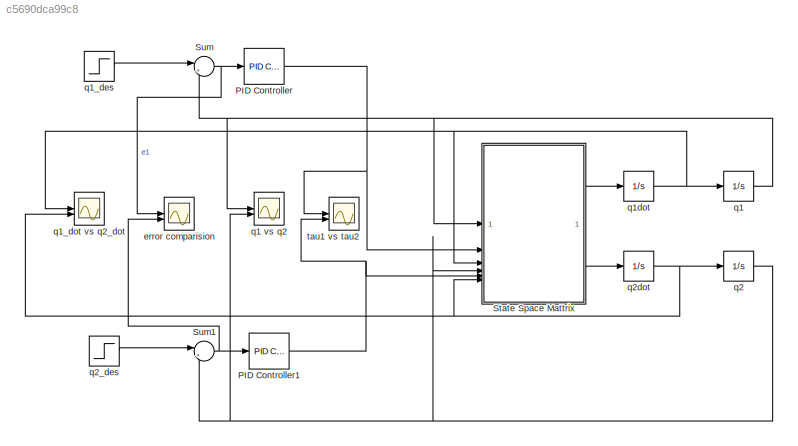
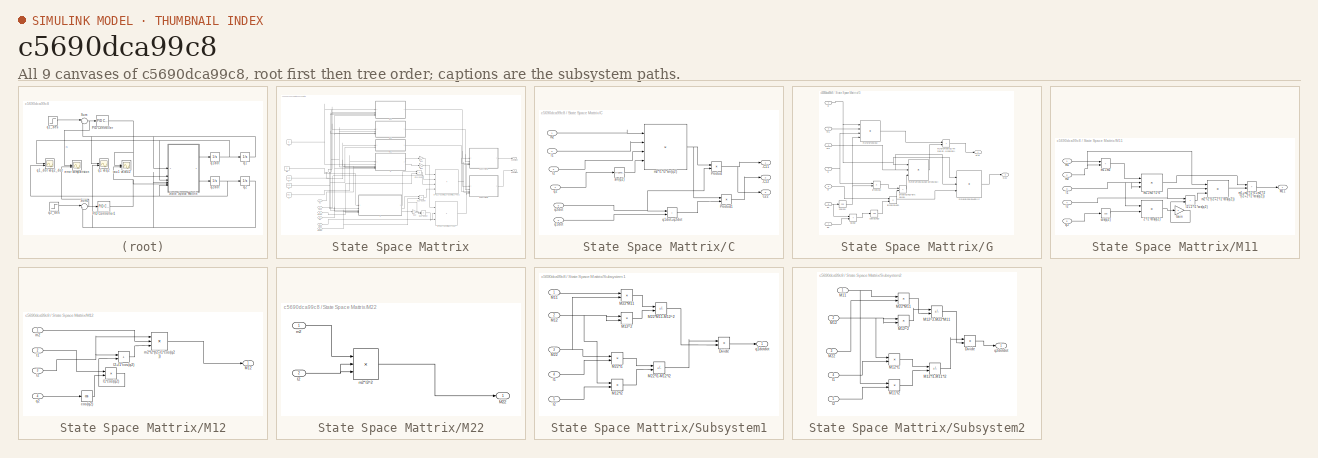
[diagram: thumbnail index - all 9 canvases of the model, root first then tree order]
MODEL slx_c5690dca99c8
KIND model
CONFIG AbsTol = auto
CONFIG EnableMultiTasking = off
CONFIG FixedStep = auto
CONFIG MaxStep = auto
CONFIG MinStep = auto
CONFIG RelTol = 1e-3
CONFIG SampleTimeConstraint = Unconstrained
CONFIG SolverName = VariableStepAuto
CONFIG StartTime = 0.0
CONFIG StopTime = 50
BLOCK [Reference] PID Controller  REF=slpidlib/PID Controller
  LibrarySourceBlock = simulink/Continuous/PID Controller
  SourceBlock = slpidlib/PID Controller
  SourceType = PID 1dof
BLOCK [Reference] PID Controller1  REF=slpidlib/PID Controller
  LibrarySourceBlock = simulink/Continuous/PID Controller
  SourceBlock = slpidlib/PID Controller
  SourceType = PID 1dof
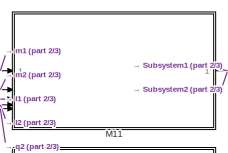
[diagram: State Space Mattrix - part 1/3, top center region]
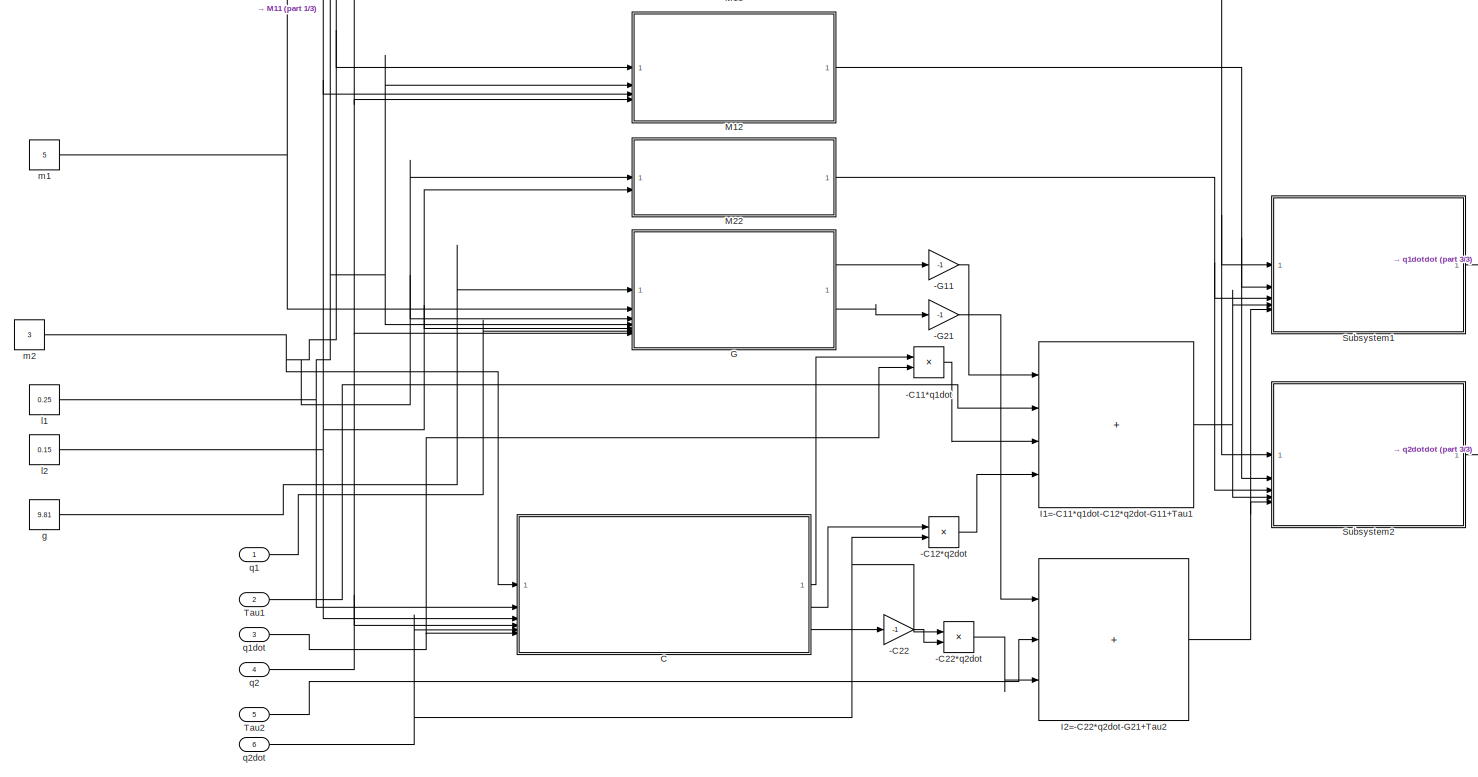
[diagram: State Space Mattrix - part 2/3, most of the canvas]
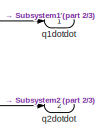
[diagram: State Space Mattrix - part 3/3, middle right region]
BLOCK [SubSystem] State Space Mattrix
BLOCK [Product] State Space Mattrix/-C11*q1dot
BLOCK [Product] State Space Mattrix/-C12*q2dot
BLOCK [Gain] State Space Mattrix/-C22
  Gain = -1
BLOCK [Product] State Space Mattrix/-C22*q2dot
BLOCK [Gain] State Space Mattrix/-G11
  Gain = -1
BLOCK [Gain] State Space Mattrix/-G21
  Gain = -1
BLOCK [SubSystem] State Space Mattrix/C
BLOCK [Outport] State Space Mattrix/C/-C11
BLOCK [Outport] State Space Mattrix/C/-C12
  Port = 2
BLOCK [Outport] State Space Mattrix/C/C22
  Port = 3
BLOCK [Inport] State Space Mattrix/C/I2
  Port = 3
BLOCK [Product] State Space Mattrix/C/Product
BLOCK [Product] State Space Mattrix/C/Product1
BLOCK [Inport] State Space Mattrix/C/l1
  Port = 2
BLOCK [Inport] State Space Mattrix/C/m2
BLOCK [Product] State Space Mattrix/C/m2*l1*l2*sin(q2)
  Inputs = 4
BLOCK [Inport] State Space Mattrix/C/q1dot
  Port = 6
BLOCK [Sum] State Space Mattrix/C/q1dot+q2dot
  IconShape = rectangular
BLOCK [Inport] State Space Mattrix/C/q2
  Port = 4
BLOCK [Inport] State Space Mattrix/C/q2dot
  Port = 5
BLOCK [Trigonometry] State Space Mattrix/C/sin(q2)
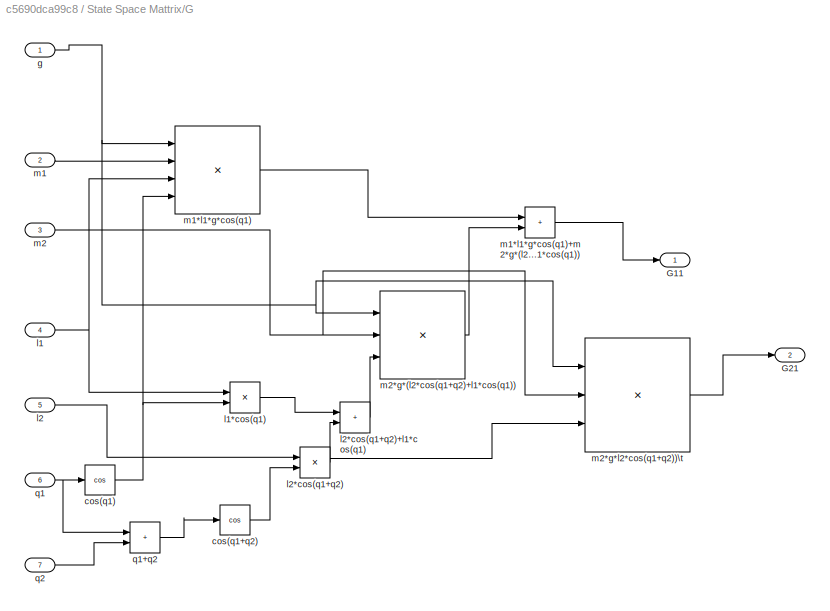
BLOCK [SubSystem] State Space Mattrix/G
BLOCK [Outport] State Space Mattrix/G/G11
BLOCK [Outport] State Space Mattrix/G/G21
  Port = 2
BLOCK [Trigonometry] State Space Mattrix/G/cos(q1)
  Operator = cos
BLOCK [Trigonometry] State Space Mattrix/G/cos(q1+q2)
  Operator = cos
BLOCK [Inport] State Space Mattrix/G/g
BLOCK [Inport] State Space Mattrix/G/l1
  Port = 4
BLOCK [Product] State Space Mattrix/G/l1*cos(q1)
BLOCK [Inport] State Space Mattrix/G/l2
  Port = 5
BLOCK [Product] State Space Mattrix/G/l2*cos(q1+q2)
BLOCK [Sum] State Space Mattrix/G/l2*cos(q1+q2)+l1*cos(q1)
  IconShape = rectangular
BLOCK [Inport] State Space Mattrix/G/m1
  Port = 2
BLOCK [Product] State Space Mattrix/G/m1*l1*g*cos(q1)
  Inputs = 4
BLOCK [Sum] State Space Mattrix/G/m1*l1*g*cos(q1)+m2*g*(l2*cos(q1+q2)+l1*cos(q1))
  IconShape = rectangular
BLOCK [Inport] State Space Mattrix/G/m2
  Port = 3
BLOCK [Product] State Space Mattrix/G/m2*g*(l2*cos(q1+q2)+l1*cos(q1))
  Inputs = 3
BLOCK [Product] State Space Mattrix/G/m2*g*l2*cos(q1+q2))\t
  Inputs = 3
BLOCK [Inport] State Space Mattrix/G/q1
  Port = 6
BLOCK [Sum] State Space Mattrix/G/q1+q2
  IconShape = rectangular
BLOCK [Inport] State Space Mattrix/G/q2
  Port = 7
BLOCK [Sum] State Space Mattrix/I1=-C11*q1dot-C12*q2dot-G11+Tau1
  IconShape = rectangular
  Inputs = ++++
BLOCK [Sum] State Space Mattrix/I2=-C22*q2dot-G21+Tau2
  IconShape = rectangular
  Inputs = +++
BLOCK [SubSystem] State Space Mattrix/M11
BLOCK [Product] State Space Mattrix/M11/2*l1*cos(q2)
BLOCK [Gain] State Space Mattrix/M11/Gain
  Gain = 2
BLOCK [Outport] State Space Mattrix/M11/M11
BLOCK [Trigonometry] State Space Mattrix/M11/cos(q2)
  Operator = cos
BLOCK [Inport] State Space Mattrix/M11/l1
  Port = 3
BLOCK [Inport] State Space Mattrix/M11/l2
  Port = 4
BLOCK [Sum] State Space Mattrix/M11/l2+2*l1*cos(q2)
  IconShape = rectangular
BLOCK [Inport] State Space Mattrix/M11/m1
BLOCK [Sum] State Space Mattrix/M11/m1+m2
  IconShape = rectangular
BLOCK [Product] State Space Mattrix/M11/m1+m2*l1^2
  Inputs = 3
BLOCK [Sum] State Space Mattrix/M11/m1+m2*l1^2+m2*l2*(l2+2*l1*cos(q2))
  IconShape = rectangular
BLOCK [Inport] State Space Mattrix/M11/m2
  Port = 2
BLOCK [Product] State Space Mattrix/M11/m2*l2*(l2+2*l1*cos(q2))
  Inputs = 3
BLOCK [Inport] State Space Mattrix/M11/q2
  Port = 5
BLOCK [SubSystem] State Space Mattrix/M12
BLOCK [Outport] State Space Mattrix/M12/M12
BLOCK [Trigonometry] State Space Mattrix/M12/cos(q2)
  Operator = cos
BLOCK [Inport] State Space Mattrix/M12/l1
  Port = 2
BLOCK [Product] State Space Mattrix/M12/l1*cos(q2)
BLOCK [Inport] State Space Mattrix/M12/l2
  Port = 3
BLOCK [Sum] State Space Mattrix/M12/l2+l1*cos(q2)
  IconShape = rectangular
BLOCK [Inport] State Space Mattrix/M12/m2
BLOCK [Product] State Space Mattrix/M12/m2*l2*(l2+l1*cos(q2))
  Inputs = 3
BLOCK [Inport] State Space Mattrix/M12/q2
  Port = 4
BLOCK [SubSystem] State Space Mattrix/M22
BLOCK [Outport] State Space Mattrix/M22/M22
BLOCK [Inport] State Space Mattrix/M22/l2
  Port = 2
BLOCK [Inport] State Space Mattrix/M22/m2
BLOCK [Product] State Space Mattrix/M22/m2*l2^2
  Inputs = 3
BLOCK [SubSystem] State Space Mattrix/Subsystem1
BLOCK [Product] State Space Mattrix/Subsystem1/Divide
  Inputs = */
BLOCK [Inport] State Space Mattrix/Subsystem1/I1
  Port = 4
BLOCK [Inport] State Space Mattrix/Subsystem1/I2
  Port = 5
BLOCK [Inport] State Space Mattrix/Subsystem1/M11
BLOCK [Inport] State Space Mattrix/Subsystem1/M12
  Port = 2
BLOCK [Product] State Space Mattrix/Subsystem1/M12*I2
BLOCK [Product] State Space Mattrix/Subsystem1/M12^2
BLOCK [Inport] State Space Mattrix/Subsystem1/M22
  Port = 3
BLOCK [Product] State Space Mattrix/Subsystem1/M22*I1
BLOCK [Sum] State Space Mattrix/Subsystem1/M22*I1-M12*I2
  IconShape = rectangular
  Inputs = +-
BLOCK [Product] State Space Mattrix/Subsystem1/M22*M11
BLOCK [Sum] State Space Mattrix/Subsystem1/M22*M11-M12^2
  IconShape = rectangular
  Inputs = +-
BLOCK [Outport] State Space Mattrix/Subsystem1/q1dotdot 
BLOCK [SubSystem] State Space Mattrix/Subsystem2
BLOCK [Product] State Space Mattrix/Subsystem2/Divide
  Inputs = */
BLOCK [Inport] State Space Mattrix/Subsystem2/I1
  Port = 4
BLOCK [Inport] State Space Mattrix/Subsystem2/I2
  Port = 5
BLOCK [Inport] State Space Mattrix/Subsystem2/M11
BLOCK [Product] State Space Mattrix/Subsystem2/M11*I2
BLOCK [Inport] State Space Mattrix/Subsystem2/M12
  Port = 2
BLOCK [Product] State Space Mattrix/Subsystem2/M12*I1
BLOCK [Sum] State Space Mattrix/Subsystem2/M12*I1-M11*I2
  IconShape = rectangular
  Inputs = +-
BLOCK [Product] State Space Mattrix/Subsystem2/M12^2
BLOCK [Sum] State Space Mattrix/Subsystem2/M12^2-M22*M11
  IconShape = rectangular
  Inputs = +-
BLOCK [Inport] State Space Mattrix/Subsystem2/M22
  Port = 3
BLOCK [Product] State Space Mattrix/Subsystem2/M22*M11
BLOCK [Outport] State Space Mattrix/Subsystem2/q2dotdot 
BLOCK [Inport] State Space Mattrix/Tau1
  Port = 2
BLOCK [Inport] State Space Mattrix/Tau2
  Port = 5
BLOCK [Constant] State Space Mattrix/g
  Value = 9.81
BLOCK [Constant] State Space Mattrix/l1
  Value = 0.25
BLOCK [Constant] State Space Mattrix/l2
  Value = 0.15
BLOCK [Constant] State Space Mattrix/m1
  Value = 5
BLOCK [Constant] State Space Mattrix/m2
  Value = 3
BLOCK [Inport] State Space Mattrix/q1
BLOCK [Inport] State Space Mattrix/q1dot
  Port = 3
BLOCK [Outport] State Space Mattrix/q1dotdot
BLOCK [Inport] State Space Mattrix/q2
  Port = 4
BLOCK [Inport] State Space Mattrix/q2dot
  Port = 6
BLOCK [Outport] State Space Mattrix/q2dotdot
  Port = 2
BLOCK [Sum] Sum
  Inputs = |+-
BLOCK [Sum] Sum1
  Inputs = |+-
BLOCK [Scope] error comparision
  ActiveDisplayYMaximum = 1
  ActiveDisplayYMinimum = -1
  DataLoggingVariableName = ScopeData1
  Floating = off
  GraphicalSettings = {"Style":{"BackgroundColor":[0.12941176470588237,0.12941176470588237,0.12941176470588237],"AxesColor":[0.07058823529411765,0.07058823529411765,0.07058823529411765],"LabelsColor":[0.8509803921568627,0.8509803921568627,0.8509803921568627],"PreserveColors":false,"Visible":[true,true],"LineStyle":["-","-"],"LineWidth":[1.5,1.5],"BarWidth":[0.9,0.9],"LineColor":["auto","auto"],"LineFaceAlpha":[1,1],"Li...<+2103ch>
  MultipleDisplayCache = [{"MaxYLimMag":1,"MaxYLimReal":1,"MinYLimMag":0,"MinYLimReal":-1,"PlotAsMagnitudePhase":false,"ShowGrid":true,"ShowLegend":true,"Title":"%<SignalLabel>","YLabel":""}]
  NumInputPorts = 2
  ScopeFrameLocation = window
  ShowLegend = on
  WasSavedAsWebScope = on
  WindowPosition = [1.000000,49.000000,1280.000000,729.000000,]
BLOCK [Integrator] q1
  InitialCondition = 0.1
BLOCK [Scope] q1 vs q2
  ActiveDisplayYMaximum = 0.20860466599804511
  ActiveDisplayYMinimum = -0.27365843091544217
  Floating = off
  GraphicalSettings = {"Style":{"BackgroundColor":[0.12941176470588237,0.12941176470588237,0.12941176470588237],"AxesColor":[0.07058823529411765,0.07058823529411765,0.07058823529411765],"LabelsColor":[0.8509803921568627,0.8509803921568627,0.8509803921568627],"PreserveColors":false,"Visible":[true,true],"LineStyle":["-","-"],"LineWidth":[1.5,1.5],"BarWidth":[0.9,0.9],"LineColor":["auto","auto"],"LineFaceAlpha":[1,1],"Li...<+2096ch>
  MultipleDisplayCache = [{"MaxYLimMag":0.16185012331841014,"MaxYLimReal":0.20860466599804511,"MinYLimMag":0,"MinYLimReal":-0.27365843091544217,"PlotAsMagnitudePhase":false,"ShowGrid":true,"ShowLegend":true,"Title":"%<SignalLabel>","YLabel":""}]
  NumInputPorts = 2
  ScopeFrameLocation = window
  ShowLegend = on
  WasSavedAsWebScope = on
  WindowPosition = [1.000000,49.000000,1280.000000,729.000000,]
BLOCK [Step] q1_des
  After = 0
  SampleTime = 0
BLOCK [Scope] q1_dot vs q2_dot
  ActiveDisplayYMaximum = 9.3160134029449342
  ActiveDisplayYMinimum = -16.221672111581775
  DataLoggingVariableName = ScopeData2
  Floating = off
  GraphicalSettings = {"Style":{"BackgroundColor":[0.12941176470588237,0.12941176470588237,0.12941176470588237],"AxesColor":[0.07058823529411765,0.07058823529411765,0.07058823529411765],"LabelsColor":[0.8509803921568627,0.8509803921568627,0.8509803921568627],"PreserveColors":false,"Visible":[true,true],"LineStyle":["-","-"],"LineWidth":[1.5,1.5],"BarWidth":[0.9,0.9],"LineColor":["auto","auto"],"LineFaceAlpha":[1,1],"Li...<+2100ch>
  MultipleDisplayCache = [{"MaxYLimMag":79.8910428056106,"MaxYLimReal":9.3160134029449342,"MinYLimMag":0,"MinYLimReal":-16.221672111581775,"PlotAsMagnitudePhase":false,"ShowGrid":true,"ShowLegend":false,"Title":"%<SignalLabel>","YLabel":""}]
  NumInputPorts = 2
  ScopeFrameLocation = window
  WasSavedAsWebScope = on
  WindowPosition = [0.000000,36.000000,1280.000000,729.000000,]
BLOCK [Integrator] q1dot
BLOCK [Integrator] q2
  InitialCondition = 0.1
BLOCK [Step] q2_des
  After = 0
  SampleTime = 0
BLOCK [Integrator] q2dot
BLOCK [Scope] tau1 vs tau2
  ActiveDisplayYMaximum = 40.414840154467996
  ActiveDisplayYMinimum = -30.7924543124781
  DataLoggingVariableName = ScopeData3
  Floating = off
  GraphicalSettings = {"Style":{"BackgroundColor":[0.12941176470588237,0.12941176470588237,0.12941176470588237],"AxesColor":[0.07058823529411765,0.07058823529411765,0.07058823529411765],"LabelsColor":[0.8509803921568627,0.8509803921568627,0.8509803921568627],"PreserveColors":false,"Visible":[true,true],"LineStyle":["-","-"],"LineWidth":[1.5,1.5],"BarWidth":[0.9,0.9],"LineColor":["auto","auto"],"LineFaceAlpha":[1,1],"Li...<+2138ch>
  MultipleDisplayCache = [{"MaxYLimMag":895.31701733334739,"MaxYLimReal":40.414840154467996,"MinYLimMag":0,"MinYLimReal":-30.7924543124781,"PlotAsMagnitudePhase":false,"ShowGrid":true,"ShowLegend":false,"Title":"%<SignalLabel>","YLabel":""}]
  NumInputPorts = 2
  ScopeFrameLocation = window
  WasSavedAsWebScope = on
  WindowPosition = [0.000000,36.000000,1280.000000,729.000000,]
NET PID Controller1:1 -> State Space Mattrix:5, tau1 vs tau2:2
NET PID Controller:1 -> State Space Mattrix:2, tau1 vs tau2:1
LINE State Space Mattrix/-C11*q1dot:1 -> State Space Mattrix/I1=-C11*q1dot-C12*q2dot-G11+Tau1:3
LINE State Space Mattrix/-C12*q2dot:1 -> State Space Mattrix/I1=-C11*q1dot-C12*q2dot-G11+Tau1:4
LINE State Space Mattrix/-C22*q2dot:1 -> State Space Mattrix/I2=-C22*q2dot-G21+Tau2:3
LINE State Space Mattrix/-C22:1 -> State Space Mattrix/-C22*q2dot:2
LINE State Space Mattrix/-G11:1 -> State Space Mattrix/I1=-C11*q1dot-C12*q2dot-G11+Tau1:1
LINE State Space Mattrix/-G21:1 -> State Space Mattrix/I2=-C22*q2dot-G21+Tau2:1
LINE State Space Mattrix/C/I2:1 -> State Space Mattrix/C/m2*l1*l2*sin(q2):3
LINE State Space Mattrix/C/Product1:1 -> State Space Mattrix/C/-C12:1
NET State Space Mattrix/C/Product:1 -> State Space Mattrix/C/-C11:1, State Space Mattrix/C/C22:1
LINE State Space Mattrix/C/l1:1 -> State Space Mattrix/C/m2*l1*l2*sin(q2):2
NET State Space Mattrix/C/m2*l1*l2*sin(q2):1 -> State Space Mattrix/C/Product1:1, State Space Mattrix/C/Product:1
LINE State Space Mattrix/C/m2:1 -> State Space Mattrix/C/m2*l1*l2*sin(q2):1
LINE State Space Mattrix/C/q1dot+q2dot:1 -> State Space Mattrix/C/Product1:2
LINE State Space Mattrix/C/q1dot:1 -> State Space Mattrix/C/q1dot+q2dot:2
LINE State Space Mattrix/C/q2:1 -> State Space Mattrix/C/sin(q2):1
NET State Space Mattrix/C/q2dot:1 -> State Space Mattrix/C/Product:2, State Space Mattrix/C/q1dot+q2dot:1
LINE State Space Mattrix/C/sin(q2):1 -> State Space Mattrix/C/m2*l1*l2*sin(q2):4
LINE State Space Mattrix/C:1 -> State Space Mattrix/-C11*q1dot:1
LINE State Space Mattrix/C:2 -> State Space Mattrix/-C12*q2dot:1
LINE State Space Mattrix/C:3 -> State Space Mattrix/-C22:1
NET State Space Mattrix/G/cos(q1):1 -> State Space Mattrix/G/l1*cos(q1):2, State Space Mattrix/G/m1*l1*g*cos(q1):4
LINE State Space Mattrix/G/cos(q1+q2):1 -> State Space Mattrix/G/l2*cos(q1+q2):2
NET State Space Mattrix/G/g:1 -> State Space Mattrix/G/m1*l1*g*cos(q1):1, State Space Mattrix/G/m2*g*(l2*cos(q1+q2)+l1*cos(q1)):1, State Space Mattrix/G/m2*g*l2*cos(q1+q2))\t:1
LINE State Space Mattrix/G/l1*cos(q1):1 -> State Space Mattrix/G/l2*cos(q1+q2)+l1*cos(q1):1
NET State Space Mattrix/G/l1:1 -> State Space Mattrix/G/l1*cos(q1):1, State Space Mattrix/G/m1*l1*g*cos(q1):3
LINE State Space Mattrix/G/l2*cos(q1+q2)+l1*cos(q1):1 -> State Space Mattrix/G/m2*g*(l2*cos(q1+q2)+l1*cos(q1)):3
NET State Space Mattrix/G/l2*cos(q1+q2):1 -> State Space Mattrix/G/l2*cos(q1+q2)+l1*cos(q1):2, State Space Mattrix/G/m2*g*l2*cos(q1+q2))\t:3
LINE State Space Mattrix/G/l2:1 -> State Space Mattrix/G/l2*cos(q1+q2):1
LINE State Space Mattrix/G/m1*l1*g*cos(q1)+m2*g*(l2*cos(q1+q2)+l1*cos(q1)):1 -> State Space Mattrix/G/G11:1
LINE State Space Mattrix/G/m1*l1*g*cos(q1):1 -> State Space Mattrix/G/m1*l1*g*cos(q1)+m2*g*(l2*cos(q1+q2)+l1*cos(q1)):1
LINE State Space Mattrix/G/m1:1 -> State Space Mattrix/G/m1*l1*g*cos(q1):2
LINE State Space Mattrix/G/m2*g*(l2*cos(q1+q2)+l1*cos(q1)):1 -> State Space Mattrix/G/m1*l1*g*cos(q1)+m2*g*(l2*cos(q1+q2)+l1*cos(q1)):2
LINE State Space Mattrix/G/m2*g*l2*cos(q1+q2))\t:1 -> State Space Mattrix/G/G21:1
NET State Space Mattrix/G/m2:1 -> State Space Mattrix/G/m2*g*(l2*cos(q1+q2)+l1*cos(q1)):2, State Space Mattrix/G/m2*g*l2*cos(q1+q2))\t:2
LINE State Space Mattrix/G/q1+q2:1 -> State Space Mattrix/G/cos(q1+q2):1
NET State Space Mattrix/G/q1:1 -> State Space Mattrix/G/cos(q1):1, State Space Mattrix/G/q1+q2:1
LINE State Space Mattrix/G/q2:1 -> State Space Mattrix/G/q1+q2:2
LINE State Space Mattrix/G:1 -> State Space Mattrix/-G11:1
LINE State Space Mattrix/G:2 -> State Space Mattrix/-G21:1
NET State Space Mattrix/I1=-C11*q1dot-C12*q2dot-G11+Tau1:1 -> State Space Mattrix/Subsystem1:4, State Space Mattrix/Subsystem2:4
NET State Space Mattrix/I2=-C22*q2dot-G21+Tau2:1 -> State Space Mattrix/Subsystem1:5, State Space Mattrix/Subsystem2:5
LINE State Space Mattrix/M11/2*l1*cos(q2):1 -> State Space Mattrix/M11/Gain:1
LINE State Space Mattrix/M11/Gain:1 -> State Space Mattrix/M11/l2+2*l1*cos(q2):2
LINE State Space Mattrix/M11/cos(q2):1 -> State Space Mattrix/M11/2*l1*cos(q2):2
NET State Space Mattrix/M11/l1:1 -> State Space Mattrix/M11/2*l1*cos(q2):1, State Space Mattrix/M11/m1+m2*l1^2:2, State Space Mattrix/M11/m1+m2*l1^2:3
LINE State Space Mattrix/M11/l2+2*l1*cos(q2):1 -> State Space Mattrix/M11/m2*l2*(l2+2*l1*cos(q2)):3
NET State Space Mattrix/M11/l2:1 -> State Space Mattrix/M11/l2+2*l1*cos(q2):1, State Space Mattrix/M11/m2*l2*(l2+2*l1*cos(q2)):2
LINE State Space Mattrix/M11/m1+m2*l1^2+m2*l2*(l2+2*l1*cos(q2)):1 -> State Space Mattrix/M11/M11:1
LINE State Space Mattrix/M11/m1+m2*l1^2:1 -> State Space Mattrix/M11/m1+m2*l1^2+m2*l2*(l2+2*l1*cos(q2)):1
LINE State Space Mattrix/M11/m1+m2:1 -> State Space Mattrix/M11/m1+m2*l1^2:1
LINE State Space Mattrix/M11/m1:1 -> State Space Mattrix/M11/m1+m2:1
LINE State Space Mattrix/M11/m2*l2*(l2+2*l1*cos(q2)):1 -> State Space Mattrix/M11/m1+m2*l1^2+m2*l2*(l2+2*l1*cos(q2)):2
NET State Space Mattrix/M11/m2:1 -> State Space Mattrix/M11/m1+m2:2, State Space Mattrix/M11/m2*l2*(l2+2*l1*cos(q2)):1
LINE State Space Mattrix/M11/q2:1 -> State Space Mattrix/M11/cos(q2):1
NET State Space Mattrix/M11:1 -> State Space Mattrix/Subsystem1:1, State Space Mattrix/Subsystem2:1
LINE State Space Mattrix/M12/cos(q2):1 -> State Space Mattrix/M12/l1*cos(q2):2
LINE State Space Mattrix/M12/l1*cos(q2):1 -> State Space Mattrix/M12/l2+l1*cos(q2):2
LINE State Space Mattrix/M12/l1:1 -> State Space Mattrix/M12/l1*cos(q2):1
LINE State Space Mattrix/M12/l2+l1*cos(q2):1 -> State Space Mattrix/M12/m2*l2*(l2+l1*cos(q2)):3
NET State Space Mattrix/M12/l2:1 -> State Space Mattrix/M12/l2+l1*cos(q2):1, State Space Mattrix/M12/m2*l2*(l2+l1*cos(q2)):1
LINE State Space Mattrix/M12/m2*l2*(l2+l1*cos(q2)):1 -> State Space Mattrix/M12/M12:1
LINE State Space Mattrix/M12/m2:1 -> State Space Mattrix/M12/m2*l2*(l2+l1*cos(q2)):2
LINE State Space Mattrix/M12/q2:1 -> State Space Mattrix/M12/cos(q2):1
NET State Space Mattrix/M12:1 -> State Space Mattrix/Subsystem1:2, State Space Mattrix/Subsystem2:2
NET State Space Mattrix/M22/l2:1 -> State Space Mattrix/M22/m2*l2^2:2, State Space Mattrix/M22/m2*l2^2:3
LINE State Space Mattrix/M22/m2*l2^2:1 -> State Space Mattrix/M22/M22:1
LINE State Space Mattrix/M22/m2:1 -> State Space Mattrix/M22/m2*l2^2:1
NET State Space Mattrix/M22:1 -> State Space Mattrix/Subsystem1:3, State Space Mattrix/Subsystem2:3
LINE State Space Mattrix/Subsystem1/Divide:1 -> State Space Mattrix/Subsystem1/q1dotdot :1
LINE State Space Mattrix/Subsystem1/I1:1 -> State Space Mattrix/Subsystem1/M22*I1:2
LINE State Space Mattrix/Subsystem1/I2:1 -> State Space Mattrix/Subsystem1/M12*I2:2
LINE State Space Mattrix/Subsystem1/M11:1 -> State Space Mattrix/Subsystem1/M22*M11:1
LINE State Space Mattrix/Subsystem1/M12*I2:1 -> State Space Mattrix/Subsystem1/M22*I1-M12*I2:2
NET State Space Mattrix/Subsystem1/M12:1 -> State Space Mattrix/Subsystem1/M12*I2:1, State Space Mattrix/Subsystem1/M12^2:1, State Space Mattrix/Subsystem1/M12^2:2
LINE State Space Mattrix/Subsystem1/M12^2:1 -> State Space Mattrix/Subsystem1/M22*M11-M12^2:2
LINE State Space Mattrix/Subsystem1/M22*I1-M12*I2:1 -> State Space Mattrix/Subsystem1/Divide:1
LINE State Space Mattrix/Subsystem1/M22*I1:1 -> State Space Mattrix/Subsystem1/M22*I1-M12*I2:1
LINE State Space Mattrix/Subsystem1/M22*M11-M12^2:1 -> State Space Mattrix/Subsystem1/Divide:2
LINE State Space Mattrix/Subsystem1/M22*M11:1 -> State Space Mattrix/Subsystem1/M22*M11-M12^2:1
NET State Space Mattrix/Subsystem1/M22:1 -> State Space Mattrix/Subsystem1/M22*I1:1, State Space Mattrix/Subsystem1/M22*M11:2
LINE State Space Mattrix/Subsystem1:1 -> State Space Mattrix/q1dotdot:1
LINE State Space Mattrix/Subsystem2/Divide:1 -> State Space Mattrix/Subsystem2/q2dotdot :1
LINE State Space Mattrix/Subsystem2/I1:1 -> State Space Mattrix/Subsystem2/M12*I1:2
LINE State Space Mattrix/Subsystem2/I2:1 -> State Space Mattrix/Subsystem2/M11*I2:2
LINE State Space Mattrix/Subsystem2/M11*I2:1 -> State Space Mattrix/Subsystem2/M12*I1-M11*I2:2
NET State Space Mattrix/Subsystem2/M11:1 -> State Space Mattrix/Subsystem2/M11*I2:1, State Space Mattrix/Subsystem2/M22*M11:1
LINE State Space Mattrix/Subsystem2/M12*I1-M11*I2:1 -> State Space Mattrix/Subsystem2/Divide:1
LINE State Space Mattrix/Subsystem2/M12*I1:1 -> State Space Mattrix/Subsystem2/M12*I1-M11*I2:1
NET State Space Mattrix/Subsystem2/M12:1 -> State Space Mattrix/Subsystem2/M12*I1:1, State Space Mattrix/Subsystem2/M12^2:1, State Space Mattrix/Subsystem2/M12^2:2
LINE State Space Mattrix/Subsystem2/M12^2-M22*M11:1 -> State Space Mattrix/Subsystem2/Divide:2
LINE State Space Mattrix/Subsystem2/M12^2:1 -> State Space Mattrix/Subsystem2/M12^2-M22*M11:1
LINE State Space Mattrix/Subsystem2/M22*M11:1 -> State Space Mattrix/Subsystem2/M12^2-M22*M11:2
LINE State Space Mattrix/Subsystem2/M22:1 -> State Space Mattrix/Subsystem2/M22*M11:2
LINE State Space Mattrix/Subsystem2:1 -> State Space Mattrix/q2dotdot:1
LINE State Space Mattrix/Tau1:1 -> State Space Mattrix/I1=-C11*q1dot-C12*q2dot-G11+Tau1:2
LINE State Space Mattrix/Tau2:1 -> State Space Mattrix/I2=-C22*q2dot-G21+Tau2:2
LINE State Space Mattrix/g:1 -> State Space Mattrix/G:1
NET State Space Mattrix/l1:1 -> State Space Mattrix/C:2, State Space Mattrix/G:4, State Space Mattrix/M11:3, State Space Mattrix/M12:2
NET State Space Mattrix/l2:1 -> State Space Mattrix/C:3, State Space Mattrix/G:5, State Space Mattrix/M11:4, State Space Mattrix/M12:3, State Space Mattrix/M22:2
NET State Space Mattrix/m1:1 -> State Space Mattrix/G:2, State Space Mattrix/M11:1
NET State Space Mattrix/m2:1 -> State Space Mattrix/C:1, State Space Mattrix/G:3, State Space Mattrix/M11:2, State Space Mattrix/M12:1, State Space Mattrix/M22:1
LINE State Space Mattrix/q1:1 -> State Space Mattrix/G:6
NET State Space Mattrix/q1dot:1 -> State Space Mattrix/-C11*q1dot:2, State Space Mattrix/C:6
NET State Space Mattrix/q2:1 -> State Space Mattrix/C:4, State Space Mattrix/G:7, State Space Mattrix/M11:5, State Space Mattrix/M12:4
NET State Space Mattrix/q2dot:1 -> State Space Mattrix/-C12*q2dot:2, State Space Mattrix/-C22*q2dot:1, State Space Mattrix/C:5
LINE State Space Mattrix:1 -> q1dot:1
LINE State Space Mattrix:2 -> q2dot:1
NET Sum1:1 -> PID Controller1:1, error comparision:2
NET Sum:1 -> PID Controller:1, error comparision:1
NET q1:1 -> State Space Mattrix:1, Sum:2, q1 vs q2:1
LINE q1_des:1 -> Sum:1
NET q1dot:1 -> State Space Mattrix:3, q1:1, q1_dot vs q2_dot:1
NET q2:1 -> State Space Mattrix:4, Sum1:2, q1 vs q2:2
LINE q2_des:1 -> Sum1:1
NET q2dot:1 -> State Space Mattrix:6, q1_dot vs q2_dot:2, q2:1
note: NET lines group one-source signal fan-out (src -> all destinations, sorted); 1:1 wires keep LINE
